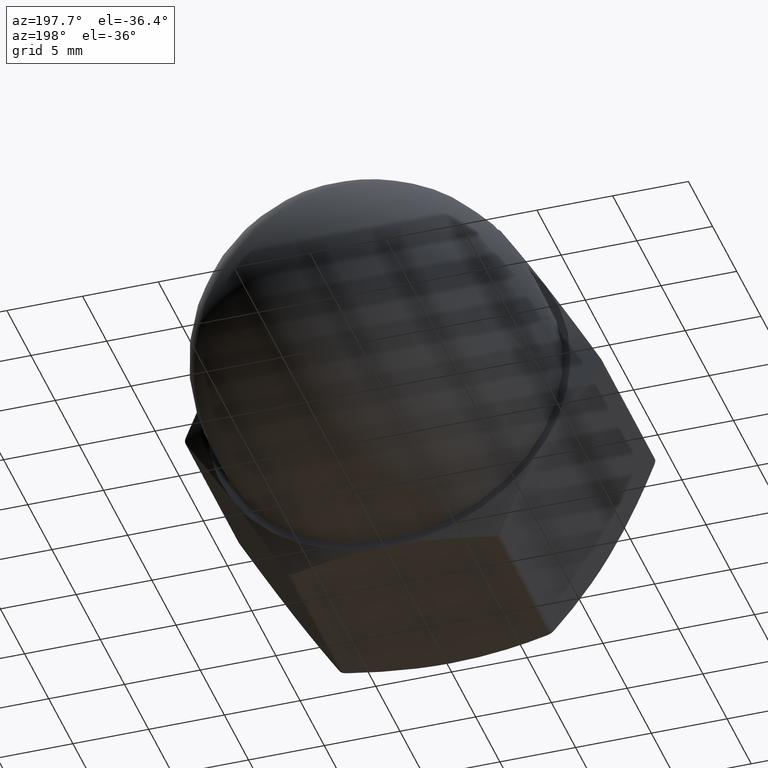
[diagram: clean part render]
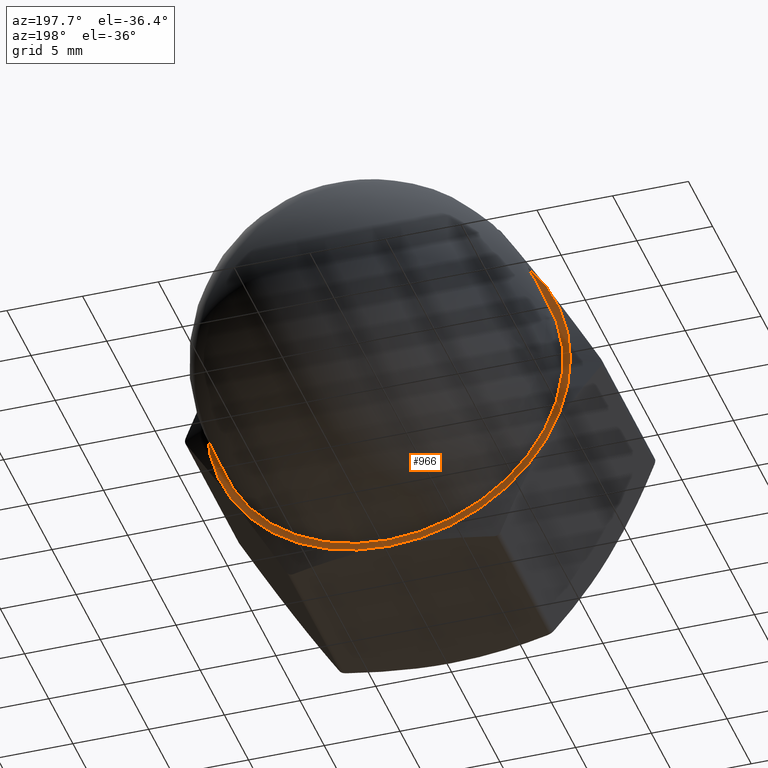
[diagram: same view with one face highlighted and labeled with its STEP entity id]
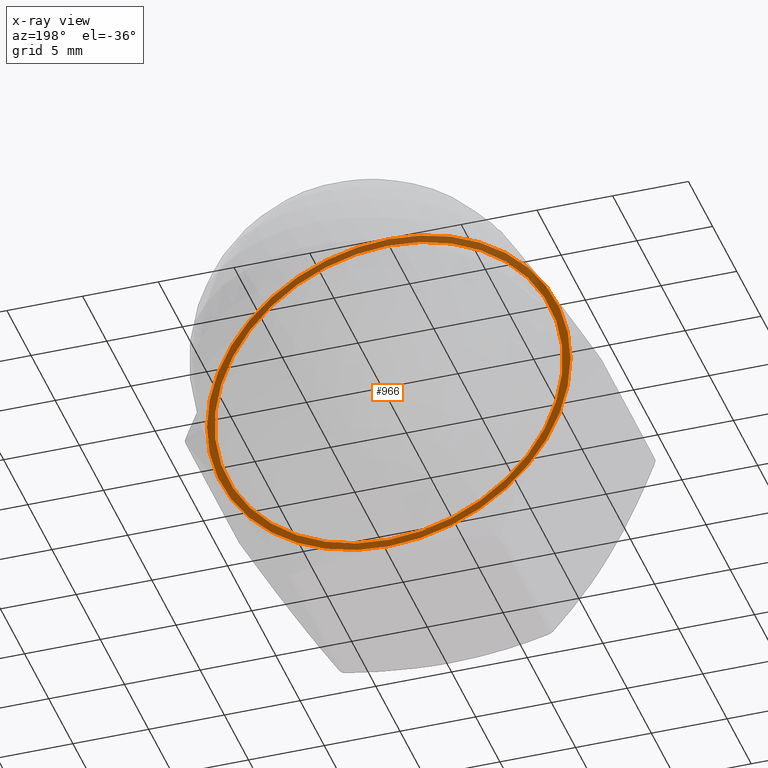
[diagram: x-ray of the same camera — body ghosted, the highlighted face saturated]
A machine part, auxiliary view. The second image highlights one B-rep face of the part: STEP entity #966.
The next image is the same camera in x-ray: the body ghosted, the highlighted face saturated — about 43% of this face is hidden behind the body in this view.
In plain terms, the highlighted planar face has unit normal (0, 1, 0).
Its self-contained STEP definition (entity closure, byte-faithful):
#7 = AXIS2_PLACEMENT_3D ( 'NONE', #1093, #479, #674 ) ;
#14 = DIRECTION ( 'NONE',  ( 0.0000000000000000000, 1.000000000000000000, 0.0000000000000000000 ) ) ;
#63 = EDGE_CURVE ( 'NONE', #1368, #1368, #1370, .T. ) ;
#84 = AXIS2_PLACEMENT_3D ( 'NONE', #1263, #436, #932 ) ;
#111 = CARTESIAN_POINT ( 'NONE',  ( -10.39230484541326400, 13.00000000000000000, -6.000000000000001800 ) ) ;
#137 = VERTEX_POINT ( 'NONE', #1201 ) ;
#158 = EDGE_LOOP ( 'NONE', ( #292 ) ) ;
#160 = AXIS2_PLACEMENT_3D ( 'NONE', #1289, #865, #1308 ) ;
#168 = EDGE_CURVE ( 'NONE', #430, #1058, #199, .T. ) ;
#186 = DIRECTION ( 'NONE',  ( 0.0000000000000000000, 0.0000000000000000000, -1.000000000000000000 ) ) ;
#199 = CIRCLE ( 'NONE', #7, 12.00000000000000200 ) ;
#204 = AXIS2_PLACEMENT_3D ( 'NONE', #1334, #918, #1122 ) ;
#264 = EDGE_CURVE ( 'NONE', #747, #1126, #1288, .T. ) ;
#292 = ORIENTED_EDGE ( 'NONE', *, *, #63, .F. ) ;
#305 = AXIS2_PLACEMENT_3D ( 'NONE', #566, #14, #1079 ) ;
#343 = EDGE_CURVE ( 'NONE', #137, #911, #526, .T. ) ;
#355 = DIRECTION ( 'NONE',  ( 0.0000000000000000000, 1.000000000000000000, 0.0000000000000000000 ) ) ;
#365 = EDGE_CURVE ( 'NONE', #137, #430, #977, .T. ) ;
#376 = CIRCLE ( 'NONE', #564, 12.00000000000000200 ) ;
#420 = CARTESIAN_POINT ( 'NONE',  ( 1.355098306013049600E-015, 13.00000000000000000, 11.50000000000000000 ) ) ;
#430 = VERTEX_POINT ( 'NONE', #111 ) ;
#436 = DIRECTION ( 'NONE',  ( 0.0000000000000000000, 1.000000000000000000, 0.0000000000000000000 ) ) ;
#455 = EDGE_CURVE ( 'NONE', #1126, #911, #642, .T. ) ;
#479 = DIRECTION ( 'NONE',  ( 0.0000000000000000000, 1.000000000000000000, 0.0000000000000000000 ) ) ;
#526 = CIRCLE ( 'NONE', #1218, 12.00000000000000200 ) ;
#548 = ORIENTED_EDGE ( 'NONE', *, *, #455, .T. ) ;
#557 = DIRECTION ( 'NONE',  ( 0.0000000000000000000, 0.0000000000000000000, 1.000000000000000000 ) ) ;
#564 = AXIS2_PLACEMENT_3D ( 'NONE', #777, #355, #783 ) ;
#566 = CARTESIAN_POINT ( 'NONE',  ( 1.355098306013049600E-015, 13.00000000000000000, 0.0000000000000000000 ) ) ;
#581 = ORIENTED_EDGE ( 'NONE', *, *, #264, .T. ) ;
#595 = CARTESIAN_POINT ( 'NONE',  ( 0.0000000000000000000, 13.00000000000000000, 12.00000000000000000 ) ) ;
#634 = CARTESIAN_POINT ( 'NONE',  ( 0.0000000000000000000, 13.00000000000000000, 0.0000000000000000000 ) ) ;
#642 = CIRCLE ( 'NONE', #160, 12.00000000000000200 ) ;
#646 = CARTESIAN_POINT ( 'NONE',  ( 10.39230484541326800, 13.00000000000000000, 5.999999999999999100 ) ) ;
#674 = DIRECTION ( 'NONE',  ( 0.0000000000000000000, 0.0000000000000000000, 1.000000000000000000 ) ) ;
#681 = ORIENTED_EDGE ( 'NONE', *, *, #168, .T. ) ;
#696 = EDGE_LOOP ( 'NONE', ( #828, #581, #548, #1059, #928, #681 ) ) ;
#747 = VERTEX_POINT ( 'NONE', #595 ) ;
#777 = CARTESIAN_POINT ( 'NONE',  ( 0.0000000000000000000, 13.00000000000000000, 0.0000000000000000000 ) ) ;
#783 = DIRECTION ( 'NONE',  ( 0.0000000000000000000, 0.0000000000000000000, 1.000000000000000000 ) ) ;
#796 = FACE_BOUND ( 'NONE', #158, .T. ) ;
#818 = DIRECTION ( 'NONE',  ( -0.0000000000000000000, -1.000000000000000000, -0.0000000000000000000 ) ) ;
#823 = CARTESIAN_POINT ( 'NONE',  ( 10.39230484541326400, 13.00000000000000000, -6.000000000000004400 ) ) ;
#828 = ORIENTED_EDGE ( 'NONE', *, *, #1250, .T. ) ;
#865 = DIRECTION ( 'NONE',  ( 0.0000000000000000000, 1.000000000000000000, 0.0000000000000000000 ) ) ;
#883 = AXIS2_PLACEMENT_3D ( 'NONE', #634, #1073, #557 ) ;
#911 = VERTEX_POINT ( 'NONE', #823 ) ;
#918 = DIRECTION ( 'NONE',  ( 0.0000000000000000000, 1.000000000000000000, 0.0000000000000000000 ) ) ;
#928 = ORIENTED_EDGE ( 'NONE', *, *, #365, .T. ) ;
#932 = DIRECTION ( 'NONE',  ( 0.0000000000000000000, -0.0000000000000000000, 1.000000000000000000 ) ) ;
#966 = ADVANCED_FACE ( 'NONE', ( #796, #1287 ), #1051, .T. ) ;
#977 = CIRCLE ( 'NONE', #883, 12.00000000000000200 ) ;
#1021 = CARTESIAN_POINT ( 'NONE',  ( 0.0000000000000000000, 13.00000000000000000, 0.0000000000000000000 ) ) ;
#1051 = PLANE ( 'NONE',  #84 ) ;
#1058 = VERTEX_POINT ( 'NONE', #1155 ) ;
#1059 = ORIENTED_EDGE ( 'NONE', *, *, #343, .F. ) ;
#1073 = DIRECTION ( 'NONE',  ( 0.0000000000000000000, 1.000000000000000000, 0.0000000000000000000 ) ) ;
#1079 = DIRECTION ( 'NONE',  ( 0.0000000000000000000, 0.0000000000000000000, 1.000000000000000000 ) ) ;
#1093 = CARTESIAN_POINT ( 'NONE',  ( 0.0000000000000000000, 13.00000000000000000, 0.0000000000000000000 ) ) ;
#1122 = DIRECTION ( 'NONE',  ( 0.0000000000000000000, 0.0000000000000000000, 1.000000000000000000 ) ) ;
#1126 = VERTEX_POINT ( 'NONE', #646 ) ;
#1155 = CARTESIAN_POINT ( 'NONE',  ( -10.39230484541326600, 13.00000000000000000, 6.000000000000002700 ) ) ;
#1201 = CARTESIAN_POINT ( 'NONE',  ( -1.502314598737160000E-015, 13.00000000000000000, -12.00000000000000200 ) ) ;
#1218 = AXIS2_PLACEMENT_3D ( 'NONE', #1021, #818, #186 ) ;
#1250 = EDGE_CURVE ( 'NONE', #1058, #747, #376, .T. ) ;
#1263 = CARTESIAN_POINT ( 'NONE',  ( 0.0000000000000000000, 13.00000000000000000, 0.0000000000000000000 ) ) ;
#1287 = FACE_OUTER_BOUND ( 'NONE', #696, .T. ) ;
#1288 = CIRCLE ( 'NONE', #204, 12.00000000000000200 ) ;
#1289 = CARTESIAN_POINT ( 'NONE',  ( 0.0000000000000000000, 13.00000000000000000, 0.0000000000000000000 ) ) ;
#1308 = DIRECTION ( 'NONE',  ( 0.0000000000000000000, 0.0000000000000000000, 1.000000000000000000 ) ) ;
#1334 = CARTESIAN_POINT ( 'NONE',  ( 0.0000000000000000000, 13.00000000000000000, 0.0000000000000000000 ) ) ;
#1368 = VERTEX_POINT ( 'NONE', #420 ) ;
#1370 = CIRCLE ( 'NONE', #305, 11.50000000000000000 ) ;